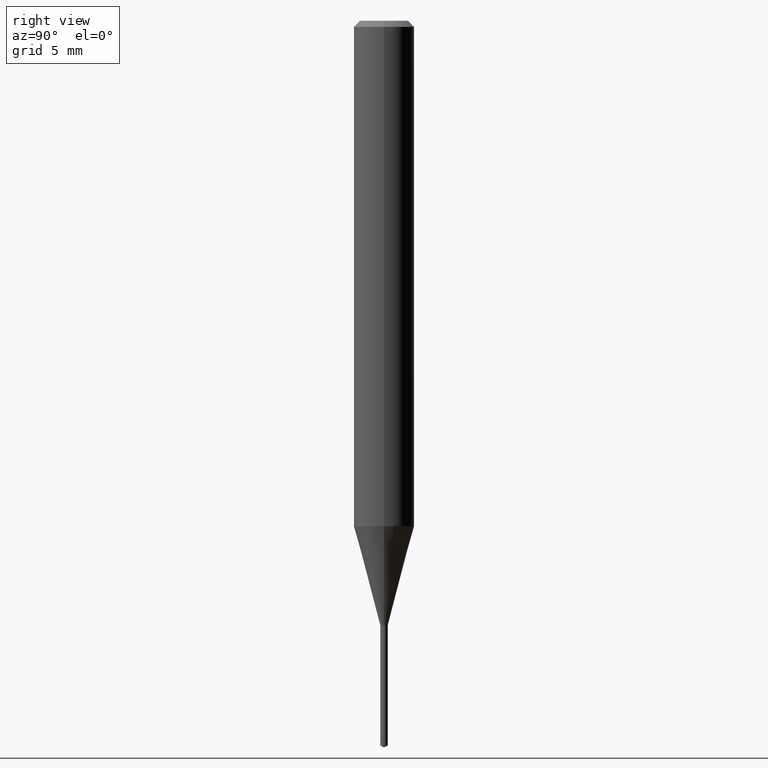
[diagram: clean part render]
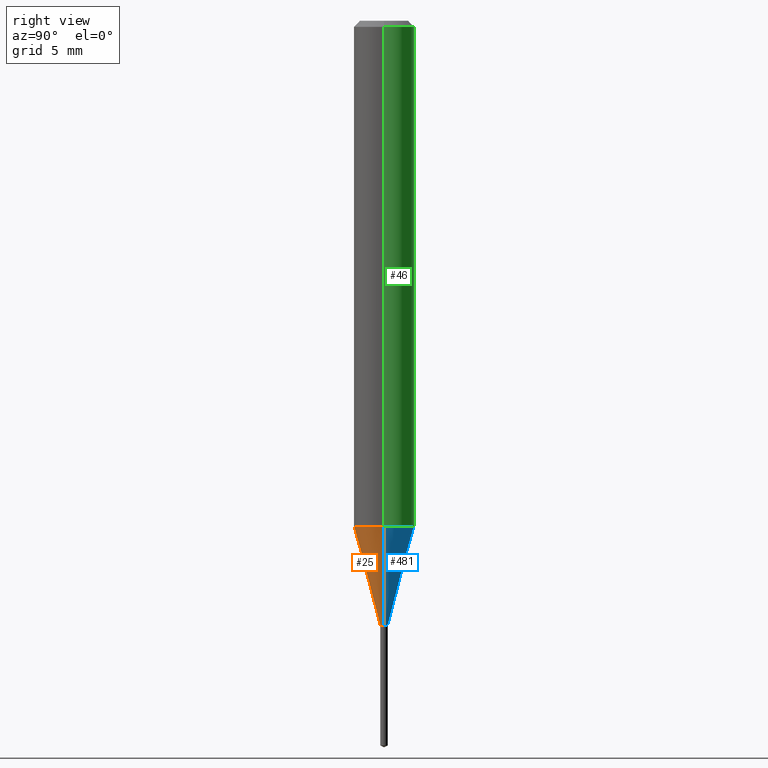
[diagram: same view with three faces highlighted in distinct colors, each labeled with its STEP entity id]
A machine part, right view with three faces highlighted in distinct colors.
Their STEP definitions:

[orange] entity #25 — the highlighted conical surface has half-angle 15 deg.
#21 = LINE ( 'NONE', #332, #287 ) ;
#24 = DIRECTION ( 'NONE',  ( -2.445468806185136597E-29, 3.491481338843145583E-15, 1.000000000000000000 ) ) ;
#25 = ADVANCED_FACE ( 'NONE', ( #429 ), #424, .T. ) ;
#29 = DIRECTION ( 'NONE',  ( 1.000000000000000000, -6.982962677686264344E-15, 0.000000000000000000 ) ) ;
#31 = CARTESIAN_POINT ( 'NONE',  ( 0.06250000000000012490, -4.080296704445417629E-15, -1.043643423366360956 ) ) ;
#42 = VERTEX_POINT ( 'NONE', #75 ) ;
#75 = CARTESIAN_POINT ( 'NONE',  ( 0.007849999999999997605, -4.410788375360545255E-15, -1.247600000000000042 ) ) ;
#76 = CARTESIAN_POINT ( 'NONE',  ( -0.007849999999999997605, -4.303511420855442473E-15, -1.247600000000000042 ) ) ;
#77 = CARTESIAN_POINT ( 'NONE',  ( 3.050966882596576644E-29, -4.355972118340708465E-15, -1.247600000000000042 ) ) ;
#79 = ORIENTED_EDGE ( 'NONE', *, *, #314, .T. ) ;
#101 = LINE ( 'NONE', #261, #185 ) ;
#113 = DIRECTION ( 'NONE',  ( -2.445468806185136597E-29, 3.491481338843145583E-15, 1.000000000000000000 ) ) ;
#130 = DIRECTION ( 'NONE',  ( 0.2588190451025211836, 1.565188264969622559E-15, 0.9659258262890679791 ) ) ;
#142 = VERTEX_POINT ( 'NONE', #472 ) ;
#185 = VECTOR ( 'NONE', #412, 39.37007874015748854 ) ;
#198 = ORIENTED_EDGE ( 'NONE', *, *, #334, .T. ) ;
#217 = DIRECTION ( 'NONE',  ( -2.445468806185136597E-29, 3.491481338843145583E-15, 1.000000000000000000 ) ) ;
#219 = CIRCLE ( 'NONE', #307, 0.06250000000000012490 ) ;
#229 = CIRCLE ( 'NONE', #311, 0.007849999999999997605 ) ;
#234 = ORIENTED_EDGE ( 'NONE', *, *, #396, .F. ) ;
#249 = EDGE_LOOP ( 'NONE', ( #234, #198, #79, #414 ) ) ;
#261 = CARTESIAN_POINT ( 'NONE',  ( -0.007849999999999997605, -4.300194513583540433E-15, -1.247600000000000042 ) ) ;
#278 = DIRECTION ( 'NONE',  ( 1.000000000000000000, -6.982962677686205179E-15, 0.000000000000000000 ) ) ;
#287 = VECTOR ( 'NONE', #130, 39.37007874015748854 ) ;
#307 = AXIS2_PLACEMENT_3D ( 'NONE', #373, #24, #29 ) ;
#311 = AXIS2_PLACEMENT_3D ( 'NONE', #443, #217, #451 ) ;
#314 = EDGE_CURVE ( 'NONE', #42, #416, #21, .T. ) ;
#332 = CARTESIAN_POINT ( 'NONE',  ( 0.007849999999999997605, -4.410788375360545255E-15, -1.247600000000000042 ) ) ;
#334 = EDGE_CURVE ( 'NONE', #480, #42, #229, .T. ) ;
#349 = AXIS2_PLACEMENT_3D ( 'NONE', #77, #113, #278 ) ;
#358 = EDGE_CURVE ( 'NONE', #142, #416, #219, .T. ) ;
#373 = CARTESIAN_POINT ( 'NONE',  ( 2.552197436622703749E-29, -3.643861537090025960E-15, -1.043643423366360956 ) ) ;
#396 = EDGE_CURVE ( 'NONE', #480, #142, #101, .T. ) ;
#412 = DIRECTION ( 'NONE',  ( -0.2588190451025211836, 5.211531920934547886E-15, 0.9659258262890679791 ) ) ;
#414 = ORIENTED_EDGE ( 'NONE', *, *, #358, .F. ) ;
#416 = VERTEX_POINT ( 'NONE', #31 ) ;
#424 = CONICAL_SURFACE ( 'NONE', #349, 0.007849999999999997605, 0.2617993877991499074 ) ;
#429 = FACE_OUTER_BOUND ( 'NONE', #249, .T. ) ;
#443 = CARTESIAN_POINT ( 'NONE',  ( 3.050966882596576644E-29, -4.355972118340708465E-15, -1.247600000000000042 ) ) ;
#451 = DIRECTION ( 'NONE',  ( 1.000000000000000000, -6.982962677686205179E-15, 0.000000000000000000 ) ) ;
#472 = CARTESIAN_POINT ( 'NONE',  ( -0.06250000000000012490, -3.199772327239961372E-15, -1.043643423366360956 ) ) ;
#480 = VERTEX_POINT ( 'NONE', #76 ) ;

[blue] entity #481 — the highlighted conical surface has half-angle 15 deg.
#6 = DIRECTION ( 'NONE',  ( 1.000000000000000000, -6.982962677686205179E-15, 0.000000000000000000 ) ) ;
#13 = EDGE_CURVE ( 'NONE', #42, #480, #78, .T. ) ;
#21 = LINE ( 'NONE', #332, #287 ) ;
#31 = CARTESIAN_POINT ( 'NONE',  ( 0.06250000000000012490, -4.080296704445417629E-15, -1.043643423366360956 ) ) ;
#42 = VERTEX_POINT ( 'NONE', #75 ) ;
#44 = ORIENTED_EDGE ( 'NONE', *, *, #314, .F. ) ;
#73 = FACE_OUTER_BOUND ( 'NONE', #422, .T. ) ;
#75 = CARTESIAN_POINT ( 'NONE',  ( 0.007849999999999997605, -4.410788375360545255E-15, -1.247600000000000042 ) ) ;
#76 = CARTESIAN_POINT ( 'NONE',  ( -0.007849999999999997605, -4.303511420855442473E-15, -1.247600000000000042 ) ) ;
#78 = CIRCLE ( 'NONE', #266, 0.007849999999999997605 ) ;
#92 = ORIENTED_EDGE ( 'NONE', *, *, #13, .T. ) ;
#101 = LINE ( 'NONE', #261, #185 ) ;
#111 = CARTESIAN_POINT ( 'NONE',  ( 3.050966882596576644E-29, -4.355972118340708465E-15, -1.247600000000000042 ) ) ;
#130 = DIRECTION ( 'NONE',  ( 0.2588190451025211836, 1.565188264969622559E-15, 0.9659258262890679791 ) ) ;
#142 = VERTEX_POINT ( 'NONE', #472 ) ;
#148 = CARTESIAN_POINT ( 'NONE',  ( 3.050966882596576644E-29, -4.355972118340708465E-15, -1.247600000000000042 ) ) ;
#152 = DIRECTION ( 'NONE',  ( 1.000000000000000000, -6.982962677686205179E-15, 0.000000000000000000 ) ) ;
#160 = AXIS2_PLACEMENT_3D ( 'NONE', #148, #189, #6 ) ;
#164 = ORIENTED_EDGE ( 'NONE', *, *, #363, .F. ) ;
#169 = CONICAL_SURFACE ( 'NONE', #160, 0.007849999999999997605, 0.2617993877991499074 ) ;
#173 = ORIENTED_EDGE ( 'NONE', *, *, #396, .T. ) ;
#174 = CARTESIAN_POINT ( 'NONE',  ( 2.552197436622703749E-29, -3.643861537090025960E-15, -1.043643423366360956 ) ) ;
#185 = VECTOR ( 'NONE', #412, 39.37007874015748854 ) ;
#189 = DIRECTION ( 'NONE',  ( -2.445468806185136597E-29, 3.491481338843145583E-15, 1.000000000000000000 ) ) ;
#213 = CIRCLE ( 'NONE', #483, 0.06250000000000012490 ) ;
#253 = DIRECTION ( 'NONE',  ( 1.000000000000000000, -6.982962677686264344E-15, 0.000000000000000000 ) ) ;
#261 = CARTESIAN_POINT ( 'NONE',  ( -0.007849999999999997605, -4.300194513583540433E-15, -1.247600000000000042 ) ) ;
#266 = AXIS2_PLACEMENT_3D ( 'NONE', #111, #272, #152 ) ;
#272 = DIRECTION ( 'NONE',  ( -2.445468806185136597E-29, 3.491481338843145583E-15, 1.000000000000000000 ) ) ;
#287 = VECTOR ( 'NONE', #130, 39.37007874015748854 ) ;
#314 = EDGE_CURVE ( 'NONE', #42, #416, #21, .T. ) ;
#332 = CARTESIAN_POINT ( 'NONE',  ( 0.007849999999999997605, -4.410788375360545255E-15, -1.247600000000000042 ) ) ;
#363 = EDGE_CURVE ( 'NONE', #416, #142, #213, .T. ) ;
#396 = EDGE_CURVE ( 'NONE', #480, #142, #101, .T. ) ;
#408 = DIRECTION ( 'NONE',  ( -2.445468806185136597E-29, 3.491481338843145583E-15, 1.000000000000000000 ) ) ;
#412 = DIRECTION ( 'NONE',  ( -0.2588190451025211836, 5.211531920934547886E-15, 0.9659258262890679791 ) ) ;
#416 = VERTEX_POINT ( 'NONE', #31 ) ;
#422 = EDGE_LOOP ( 'NONE', ( #92, #173, #164, #44 ) ) ;
#472 = CARTESIAN_POINT ( 'NONE',  ( -0.06250000000000012490, -3.199772327239961372E-15, -1.043643423366360956 ) ) ;
#480 = VERTEX_POINT ( 'NONE', #76 ) ;
#481 = ADVANCED_FACE ( 'NONE', ( #73 ), #169, .T. ) ;
#483 = AXIS2_PLACEMENT_3D ( 'NONE', #174, #408, #253 ) ;

[green] entity #46 — the highlighted cylindrical surface (edge-blend (fillet) strip) has radius 1.5875 mm, axis along (-0, 0, 1).
#12 = LINE ( 'NONE', #89, #381 ) ;
#17 = LINE ( 'NONE', #197, #401 ) ;
#31 = CARTESIAN_POINT ( 'NONE',  ( 0.06250000000000012490, -4.080296704445417629E-15, -1.043643423366360956 ) ) ;
#45 = CARTESIAN_POINT ( 'NONE',  ( 0.06250000000000000000, -4.800786840909313294E-16, -0.01250000000000008396 ) ) ;
#46 = ADVANCED_FACE ( 'NONE', ( #80 ), #147, .T. ) ;
#53 = AXIS2_PLACEMENT_3D ( 'NONE', #460, #188, #240 ) ;
#65 = ORIENTED_EDGE ( 'NONE', *, *, #216, .F. ) ;
#80 = FACE_OUTER_BOUND ( 'NONE', #224, .T. ) ;
#89 = CARTESIAN_POINT ( 'NONE',  ( -0.06250000000000006939, 4.440892098500631092E-16, -3.074334431409319267E-30 ) ) ;
#133 = CARTESIAN_POINT ( 'NONE',  ( -0.06250000000000000000, -1.399663317062718764E-15, -0.01250000000000008396 ) ) ;
#142 = VERTEX_POINT ( 'NONE', #472 ) ;
#147 = CYLINDRICAL_SURFACE ( 'NONE', #53, 0.06250000000000006939 ) ;
#166 = DIRECTION ( 'NONE',  ( -2.445468806185136877E-29, 3.491481338843145188E-15, 1.000000000000000000 ) ) ;
#174 = CARTESIAN_POINT ( 'NONE',  ( 2.552197436622703749E-29, -3.643861537090025960E-15, -1.043643423366360956 ) ) ;
#181 = AXIS2_PLACEMENT_3D ( 'NONE', #409, #477, #406 ) ;
#188 = DIRECTION ( 'NONE',  ( -2.445468806185136597E-29, 3.491481338843145583E-15, 1.000000000000000000 ) ) ;
#197 = CARTESIAN_POINT ( 'NONE',  ( 0.06250000000000006939, -4.364351673553921624E-16, 3.047610484872463374E-30 ) ) ;
#213 = CIRCLE ( 'NONE', #483, 0.06250000000000012490 ) ;
#216 = EDGE_CURVE ( 'NONE', #416, #252, #17, .T. ) ;
#224 = EDGE_LOOP ( 'NONE', ( #262, #326, #344, #65 ) ) ;
#240 = DIRECTION ( 'NONE',  ( 1.000000000000000000, -6.982962677686266711E-15, 4.876176775795935793E-29 ) ) ;
#252 = VERTEX_POINT ( 'NONE', #45 ) ;
#253 = DIRECTION ( 'NONE',  ( 1.000000000000000000, -6.982962677686264344E-15, 0.000000000000000000 ) ) ;
#262 = ORIENTED_EDGE ( 'NONE', *, *, #363, .T. ) ;
#281 = EDGE_CURVE ( 'NONE', #142, #438, #12, .T. ) ;
#320 = EDGE_CURVE ( 'NONE', #252, #438, #405, .T. ) ;
#326 = ORIENTED_EDGE ( 'NONE', *, *, #281, .T. ) ;
#344 = ORIENTED_EDGE ( 'NONE', *, *, #320, .F. ) ;
#363 = EDGE_CURVE ( 'NONE', #416, #142, #213, .T. ) ;
#381 = VECTOR ( 'NONE', #397, 39.37007874015748143 ) ;
#397 = DIRECTION ( 'NONE',  ( -2.445468806185136877E-29, 3.491481338843145188E-15, 1.000000000000000000 ) ) ;
#401 = VECTOR ( 'NONE', #166, 39.37007874015748143 ) ;
#405 = CIRCLE ( 'NONE', #181, 0.06250000000000000000 ) ;
#406 = DIRECTION ( 'NONE',  ( 1.000000000000000000, -6.982962677686266711E-15, 0.000000000000000000 ) ) ;
#408 = DIRECTION ( 'NONE',  ( -2.445468806185136597E-29, 3.491481338843145583E-15, 1.000000000000000000 ) ) ;
#409 = CARTESIAN_POINT ( 'NONE',  ( 3.056836007731441415E-31, -4.364351673553961684E-17, -0.01250000000000008396 ) ) ;
#416 = VERTEX_POINT ( 'NONE', #31 ) ;
#438 = VERTEX_POINT ( 'NONE', #133 ) ;
#460 = CARTESIAN_POINT ( 'NONE',  ( 0.000000000000000000, 0.000000000000000000, 0.000000000000000000 ) ) ;
#472 = CARTESIAN_POINT ( 'NONE',  ( -0.06250000000000012490, -3.199772327239961372E-15, -1.043643423366360956 ) ) ;
#477 = DIRECTION ( 'NONE',  ( -2.445468806185136597E-29, 3.491481338843145583E-15, 1.000000000000000000 ) ) ;
#483 = AXIS2_PLACEMENT_3D ( 'NONE', #174, #408, #253 ) ;